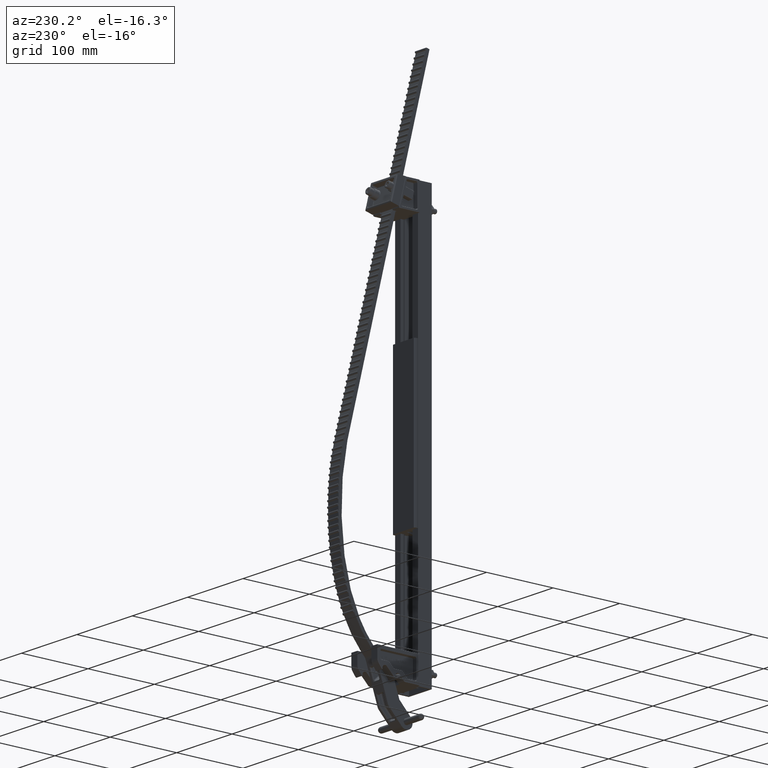
[diagram: clean part render]
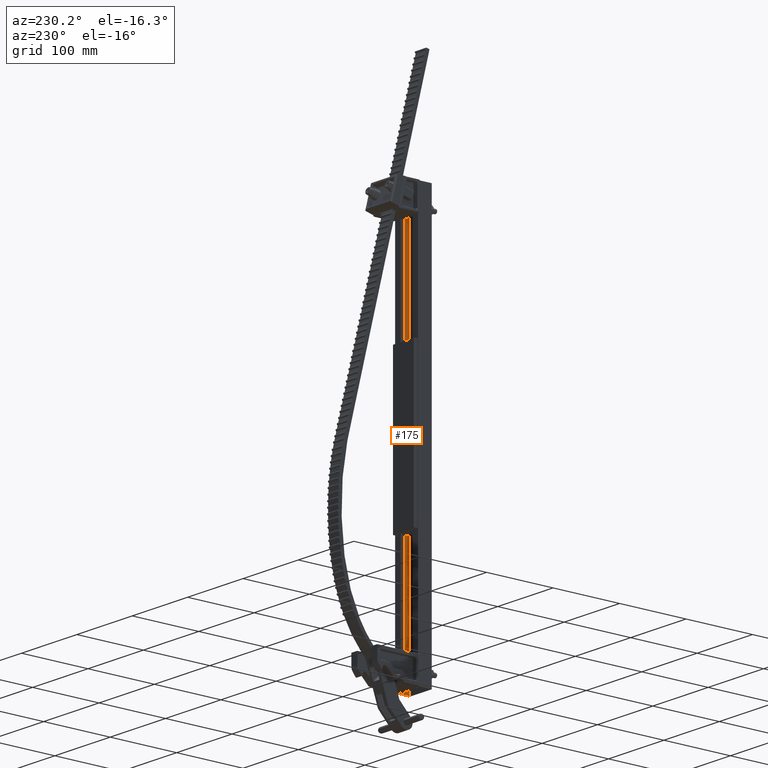
[diagram: same view with one face highlighted and labeled with its STEP entity id]
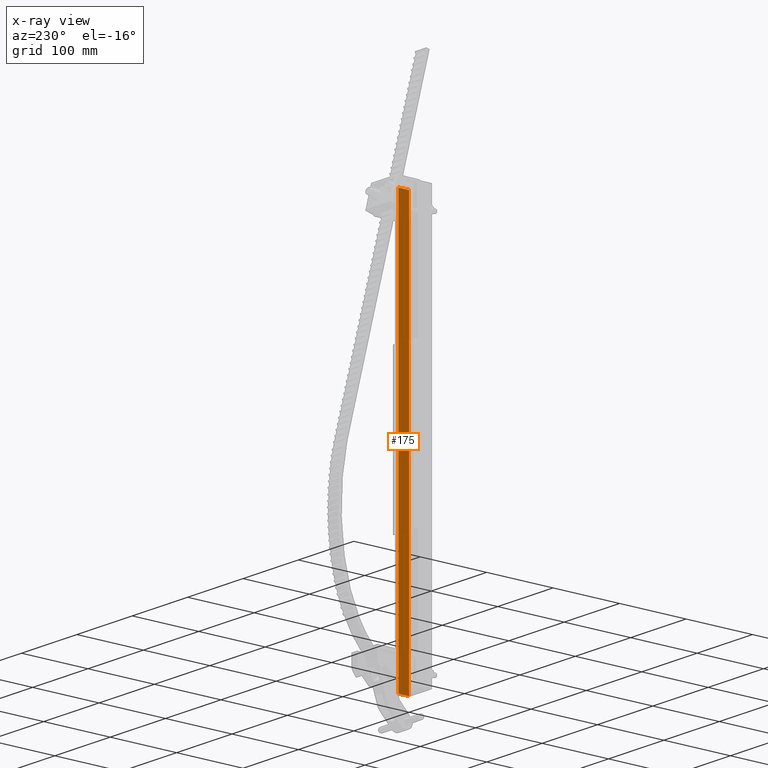
[diagram: x-ray of the same camera — body ghosted, the highlighted face saturated]
A machine part, auxiliary view. The second image highlights one B-rep face of the part: STEP entity #175.
The next image is the same camera in x-ray: the body ghosted, the highlighted face saturated — about 0% of this face is hidden behind the body in this view.
In plain terms, the highlighted planar face has unit normal (1, 0, 0).
Its self-contained STEP definition (entity closure, byte-faithful):
#175 = ADVANCED_FACE ( 'NONE', ( #11572 ), #18853, .F. ) ;
#8770 = AXIS2_PLACEMENT_3D ( 'NONE', #18848, #19880, #19882 ) ;
#9454 = ORIENTED_EDGE ( 'NONE', *, *, #39155, .T. ) ;
#9455 = ORIENTED_EDGE ( 'NONE', *, *, #39154, .F. ) ;
#9458 = ORIENTED_EDGE ( 'NONE', *, *, #39147, .F. ) ;
#9460 = ORIENTED_EDGE ( 'NONE', *, *, #39151, .T. ) ;
#11572 = FACE_OUTER_BOUND ( 'NONE', #43734, .T. ) ;
#18848 = CARTESIAN_POINT ( 'NONE',  ( 0.7035000000000000100, 0.7030000000000000700, 12.00000000000000200 ) ) ;
#18853 = PLANE ( 'NONE',  #8770 ) ;
#19469 = CARTESIAN_POINT ( 'NONE',  ( 0.7035000000000000100, 0.7030000000000000700, -12.00000000000000200 ) ) ;
#19470 = CARTESIAN_POINT ( 'NONE',  ( 0.7035000000000000100, 0.7030000000000000700, 12.00000000000000200 ) ) ;
#19471 = CARTESIAN_POINT ( 'NONE',  ( 0.7035000000000001300, 0.07800000000000006900, -12.00000000000000200 ) ) ;
#19472 = CARTESIAN_POINT ( 'NONE',  ( 0.7035000000000001300, 0.07800000000000006900, 12.00000000000000200 ) ) ;
#19880 = DIRECTION ( 'NONE',  ( 1.000000000000000000, 2.185478394931410800E-016, -0.0000000000000000000 ) ) ;
#19882 = DIRECTION ( 'NONE',  ( -2.185478394931410800E-016, 1.000000000000000000, 0.0000000000000000000 ) ) ;
#22110 = CARTESIAN_POINT ( 'NONE',  ( 0.7035000000000000100, 0.7030000000000000700, 12.00000000000000200 ) ) ;
#22111 = DIRECTION ( 'NONE',  ( 2.185478394931410600E-016, -1.000000000000000000, 0.0000000000000000000 ) ) ;
#22114 = CARTESIAN_POINT ( 'NONE',  ( 0.7035000000000000100, 0.7030000000000000700, 12.00000000000000200 ) ) ;
#22119 = DIRECTION ( 'NONE',  ( -0.0000000000000000000, -0.0000000000000000000, -1.000000000000000000 ) ) ;
#22120 = CARTESIAN_POINT ( 'NONE',  ( 0.7035000000000000100, 0.7030000000000000700, -12.00000000000000200 ) ) ;
#22124 = CARTESIAN_POINT ( 'NONE',  ( 0.7035000000000001300, 0.07800000000000006900, 12.00000000000000200 ) ) ;
#22125 = DIRECTION ( 'NONE',  ( -0.0000000000000000000, -0.0000000000000000000, -1.000000000000000000 ) ) ;
#22127 = DIRECTION ( 'NONE',  ( 2.185478394931410600E-016, -1.000000000000000000, 0.0000000000000000000 ) ) ;
#22653 = LINE ( 'NONE', #22114, #22668 ) ;
#22660 = LINE ( 'NONE', #22110, #22661 ) ;
#22661 = VECTOR ( 'NONE', #22111, 39.37007874015748100 ) ;
#22665 = LINE ( 'NONE', #22120, #22676 ) ;
#22668 = VECTOR ( 'NONE', #22119, 39.37007874015748100 ) ;
#22674 = LINE ( 'NONE', #22124, #22675 ) ;
#22675 = VECTOR ( 'NONE', #22125, 39.37007874015748100 ) ;
#22676 = VECTOR ( 'NONE', #22127, 39.37007874015748100 ) ;
#38019 = VERTEX_POINT ( 'NONE', #19469 ) ;
#38020 = VERTEX_POINT ( 'NONE', #19470 ) ;
#38021 = VERTEX_POINT ( 'NONE', #19471 ) ;
#38022 = VERTEX_POINT ( 'NONE', #19472 ) ;
#39147 = EDGE_CURVE ( 'NONE', #38020, #38022, #22660, .T. ) ;
#39151 = EDGE_CURVE ( 'NONE', #38020, #38019, #22653, .T. ) ;
#39154 = EDGE_CURVE ( 'NONE', #38022, #38021, #22674, .T. ) ;
#39155 = EDGE_CURVE ( 'NONE', #38019, #38021, #22665, .T. ) ;
#43734 = EDGE_LOOP ( 'NONE', ( #9454, #9455, #9458, #9460 ) ) ;